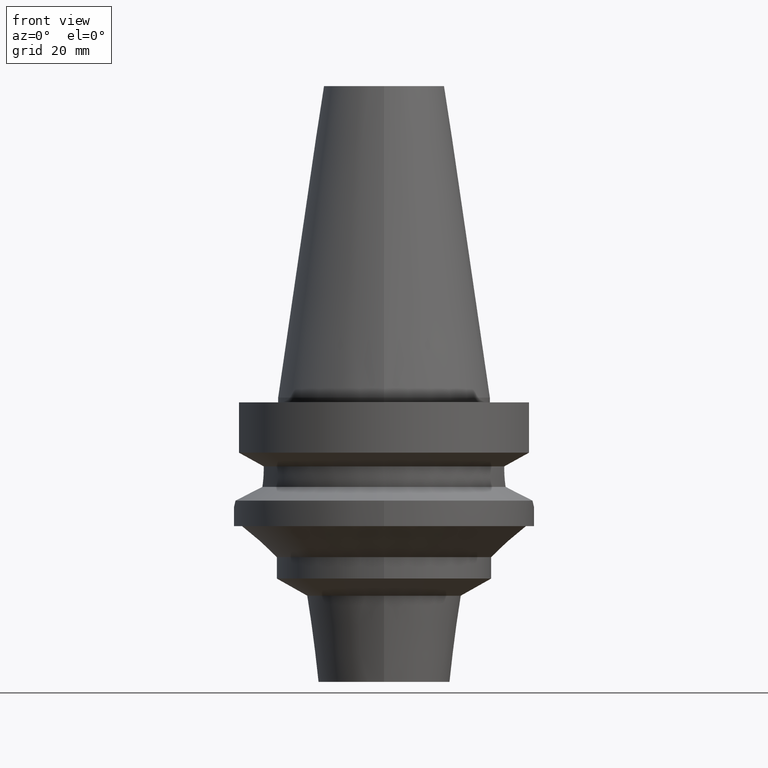
[diagram: clean part render]
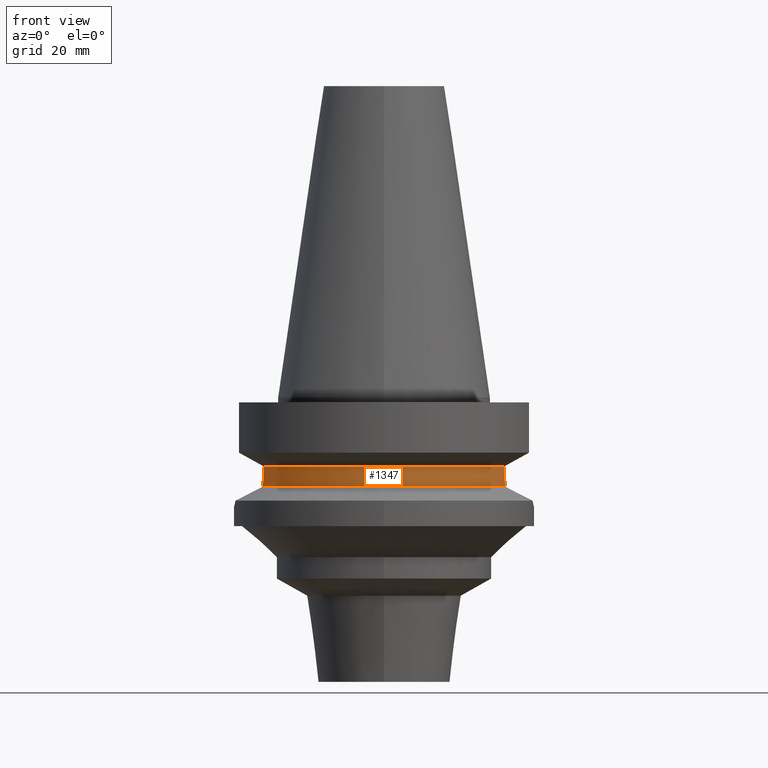
[diagram: same view with one face highlighted and labeled with its STEP entity id]
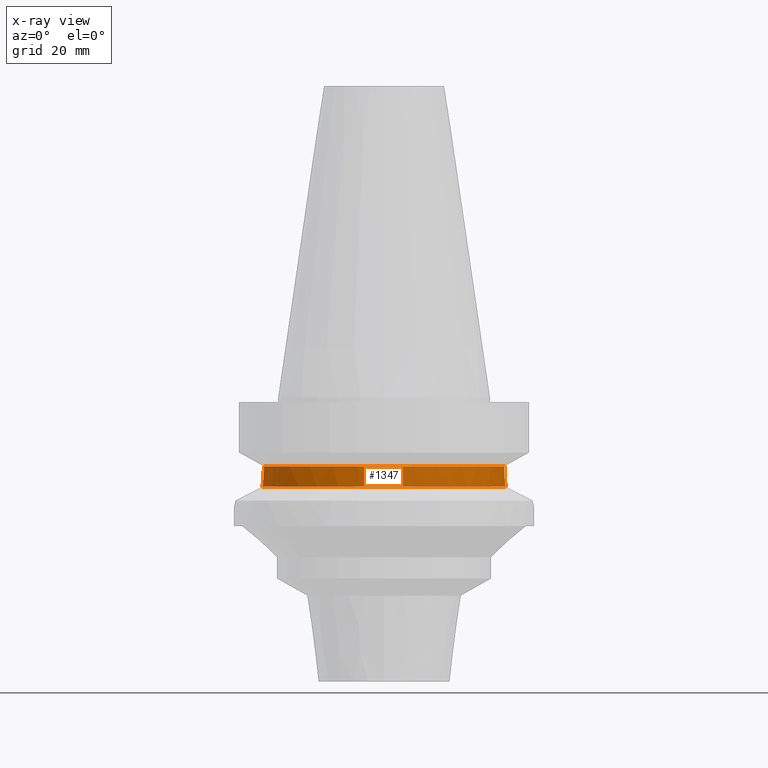
[diagram: x-ray of the same camera — body ghosted, the highlighted face saturated]
A machine part, front view. The second image highlights one B-rep face of the part: STEP entity #1347.
The next image is the same camera in x-ray: the body ghosted, the highlighted face saturated — about 0% of this face is hidden behind the body in this view.
In plain terms, the highlighted cylindrical surface (partial cylindrical patch) has radius 26.5 mm, axis along (0, 0, -1).
Its self-contained STEP definition (entity closure, byte-faithful):
#217=DIRECTION('',(-2.959055993425E-6,9.280679859050E-6,9.999999999526E-1));
#218=VECTOR('',#217,4.977077057025E-1);
#219=CARTESIAN_POINT('',(-2.524772266958E1,-8.05E0,-1.495E1));
#220=LINE('',#219,#218);
#224=DIRECTION('',(9.992179705323E-7,3.133912195893E-6,-9.999999999946E-1));
#225=VECTOR('',#224,4.977549205604E-1);
#226=CARTESIAN_POINT('',(2.524772217221E1,-8.050001559920E0,-1.445224507944E1));
#227=LINE('',#226,#225);
#231=CARTESIAN_POINT('',(2.524772266958E1,-8.05E0,-1.495E1));
#232=CARTESIAN_POINT('',(2.524772266958E1,-8.05E0,-1.538846849568E1));
#233=CARTESIAN_POINT('',(2.527035570704E1,-7.979555375502E0,-1.625469029611E1));
#234=CARTESIAN_POINT('',(2.536986207790E1,-7.660424910590E0,-1.753904421100E1));
#235=CARTESIAN_POINT('',(2.547273222220E1,-7.310161942328E0,-1.835096149794E1));
#236=CARTESIAN_POINT('',(2.553175183775E1,-7.097862220093E0,-1.874774300139E1));
#241=CARTESIAN_POINT('',(-2.553175183775E1,-7.097862220093E0,
-1.874774300139E1));
#242=CARTESIAN_POINT('',(-2.547267075789E1,-7.310383035869E0,
-1.835054828107E1));
#243=CARTESIAN_POINT('',(-2.536976562558E1,-7.660737308299E0,
-1.753798223907E1));
#244=CARTESIAN_POINT('',(-2.527040232610E1,-7.979405457471E0,
-1.625525678164E1));
#245=CARTESIAN_POINT('',(-2.524772266958E1,-8.05E0,-1.538871696765E1));
#246=CARTESIAN_POINT('',(-2.524772266958E1,-8.05E0,-1.495E1));
#267=CARTESIAN_POINT('',(0.E0,1.065333950388E-14,-1.445225699861E1));
#268=DIRECTION('',(0.E0,0.E0,-1.E0));
#269=DIRECTION('',(9.527442516822E-1,-3.037735849057E-1,0.E0));
#270=AXIS2_PLACEMENT_3D('',#267,#268,#269);
#275=CARTESIAN_POINT('',(0.E0,1.065333950388E-14,-1.445225699861E1));
#276=DIRECTION('',(0.E0,0.E0,-1.E0));
#277=DIRECTION('',(0.E0,-1.E0,0.E0));
#278=AXIS2_PLACEMENT_3D('',#275,#276,#277);
#465=CARTESIAN_POINT('',(-2.553175183775E1,-7.097862220093E0,
-1.874774300139E1));
#470=CARTESIAN_POINT('',(0.E0,0.E0,-1.874774300139E1));
#471=DIRECTION('',(0.E0,0.E0,1.E0));
#472=DIRECTION('',(-9.634623335001E-1,-2.678438573620E-1,0.E0));
#473=AXIS2_PLACEMENT_3D('',#470,#471,#472);
#478=CARTESIAN_POINT('',(0.E0,0.E0,-1.874774300139E1));
#479=DIRECTION('',(0.E0,0.E0,1.E0));
#480=DIRECTION('',(0.E0,-1.E0,0.E0));
#481=AXIS2_PLACEMENT_3D('',#478,#479,#480);
#486=CARTESIAN_POINT('',(2.553175183775E1,-7.097862220093E0,-1.874774300139E1));
#1106=VERTEX_POINT('',#486);
#1107=VERTEX_POINT('',#231);
#1118=VERTEX_POINT('',#465);
#1119=CARTESIAN_POINT('',(0.E0,-2.65E1,-1.874774300139E1));
#1120=VERTEX_POINT('',#1119);
#1132=CARTESIAN_POINT('',(-2.524772266958E1,-8.05E0,-1.495E1));
#1133=VERTEX_POINT('',#1132);
#1134=CARTESIAN_POINT('',(-2.524772414232E1,-8.049995380934E0,
-1.445229229432E1));
#1135=VERTEX_POINT('',#1134);
#1136=CARTESIAN_POINT('',(2.524772266958E1,-8.05E0,-1.445225699861E1));
#1137=CARTESIAN_POINT('',(0.E0,-2.65E1,-1.445225699861E1));
#1138=VERTEX_POINT('',#1136);
#1139=VERTEX_POINT('',#1137);
#1325=CARTESIAN_POINT('',(0.E0,2.102167463076E-14,7.1655E1));
#1326=DIRECTION('',(0.E0,0.E0,-1.E0));
#1327=DIRECTION('',(0.E0,-1.E0,0.E0));
#1328=AXIS2_PLACEMENT_3D('',#1325,#1326,#1327);
#1329=CYLINDRICAL_SURFACE('',#1328,2.65E1);
#1330=ORIENTED_EDGE('',*,*,#1312,.T.);
#1332=ORIENTED_EDGE('',*,*,#1331,.F.);
#1334=ORIENTED_EDGE('',*,*,#1333,.F.);
#1336=ORIENTED_EDGE('',*,*,#1335,.T.);
#1338=ORIENTED_EDGE('',*,*,#1337,.T.);
#1340=ORIENTED_EDGE('',*,*,#1339,.F.);
#1342=ORIENTED_EDGE('',*,*,#1341,.F.);
#1344=ORIENTED_EDGE('',*,*,#1343,.T.);
#1345=EDGE_LOOP('',(#1330,#1332,#1334,#1336,#1338,#1340,#1342,#1344));
#1346=FACE_OUTER_BOUND('',#1345,.F.);
#237=B_SPLINE_CURVE_WITH_KNOTS('',3,(#231,#232,#233,#234,#235,#236),
.UNSPECIFIED.,.F.,.F.,(4,1,1,4),(0.E0,3.333333333333E-1,6.666666666667E-1,1.E0),
.UNSPECIFIED.);
#247=B_SPLINE_CURVE_WITH_KNOTS('',3,(#241,#242,#243,#244,#245,#246),
.UNSPECIFIED.,.F.,.F.,(4,1,1,4),(0.E0,3.333333333333E-1,6.666666666667E-1,1.E0),
.UNSPECIFIED.);
#271=CIRCLE('',#270,2.65E1);
#279=CIRCLE('',#278,2.65E1);
#474=CIRCLE('',#473,2.65E1);
#482=CIRCLE('',#481,2.65E1);
#1312=EDGE_CURVE('',#1133,#1135,#220,.T.);
#1331=EDGE_CURVE('',#1139,#1135,#279,.T.);
#1333=EDGE_CURVE('',#1138,#1139,#271,.T.);
#1335=EDGE_CURVE('',#1138,#1107,#227,.T.);
#1337=EDGE_CURVE('',#1107,#1106,#237,.T.);
#1339=EDGE_CURVE('',#1120,#1106,#482,.T.);
#1341=EDGE_CURVE('',#1118,#1120,#474,.T.);
#1343=EDGE_CURVE('',#1118,#1133,#247,.T.);
#1347=ADVANCED_FACE('',(#1346),#1329,.T.);